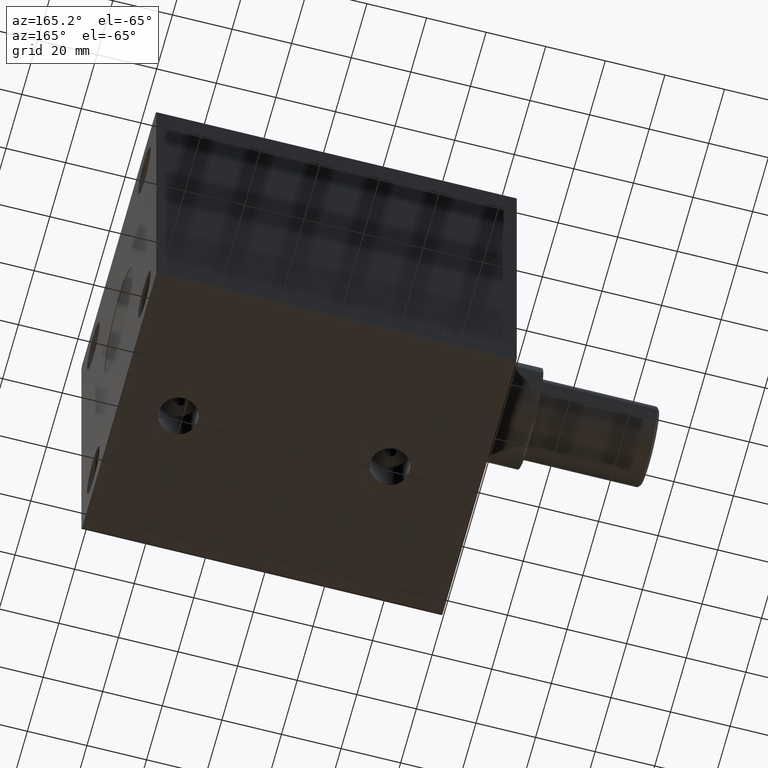
[diagram: clean part render]
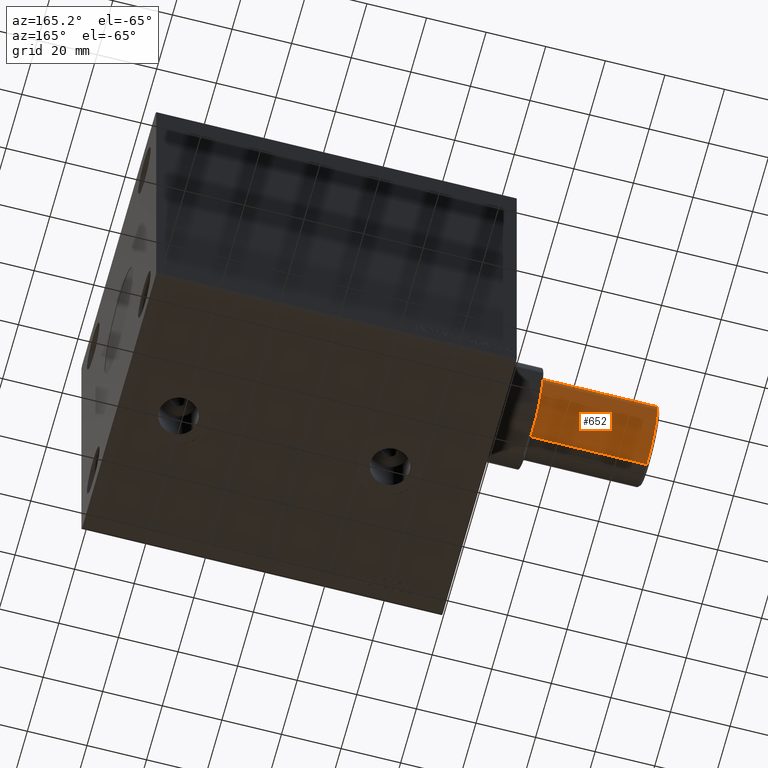
[diagram: same view with one face highlighted and labeled with its STEP entity id]
A machine part, auxiliary view. The second image highlights one B-rep face of the part: STEP entity #652.
In plain terms, the highlighted cylindrical surface (partial cylindrical patch) has radius 13.5 mm, axis along (1, -0, -0).
Its self-contained STEP definition (entity closure, byte-faithful):
#652 = ADVANCED_FACE ( 'NONE', ( #26550 ), #25674, .T. ) ;
#1026 = AXIS2_PLACEMENT_3D ( 'NONE', #32783, #5733, #43262 ) ;
#1727 = DIRECTION ( 'NONE',  ( 0.000000000000000000, 0.000000000000000000, 1.000000000000000000 ) ) ;
#1758 = DIRECTION ( 'NONE',  ( 1.000000000000000000, 0.000000000000000000, 0.000000000000000000 ) ) ;
#5059 = CARTESIAN_POINT ( 'NONE',  ( -13.50000000000000000, 1.653273178848926867E-15, -40.00000000000000000 ) ) ;
#5733 = DIRECTION ( 'NONE',  ( -0.000000000000000000, -0.000000000000000000, 1.000000000000000000 ) ) ;
#9220 = VERTEX_POINT ( 'NONE', #41070 ) ;
#12254 = ORIENTED_EDGE ( 'NONE', *, *, #40232, .T. ) ;
#12330 = ORIENTED_EDGE ( 'NONE', *, *, #44011, .T. ) ;
#13463 = DIRECTION ( 'NONE',  ( 1.000000000000000000, 0.000000000000000000, 0.000000000000000000 ) ) ;
#14098 = EDGE_CURVE ( 'NONE', #9220, #24835, #24177, .T. ) ;
#15662 = ORIENTED_EDGE ( 'NONE', *, *, #41662, .F. ) ;
#16572 = CARTESIAN_POINT ( 'NONE',  ( 13.50000000000000000, 0.000000000000000000, 0.000000000000000000 ) ) ;
#16843 = CARTESIAN_POINT ( 'NONE',  ( 13.50000000000000000, 0.000000000000000000, -40.00000000000000000 ) ) ;
#17504 = DIRECTION ( 'NONE',  ( 0.000000000000000000, 0.000000000000000000, 1.000000000000000000 ) ) ;
#18108 = AXIS2_PLACEMENT_3D ( 'NONE', #40467, #43833, #13463 ) ;
#20298 = CIRCLE ( 'NONE', #1026, 13.50000000000000000 ) ;
#21730 = CARTESIAN_POINT ( 'NONE',  ( -13.50000000000000000, 1.653273178848926867E-15, 0.000000000000000000 ) ) ;
#23195 = CARTESIAN_POINT ( 'NONE',  ( 0.000000000000000000, 0.000000000000000000, -40.00000000000000000 ) ) ;
#24177 = LINE ( 'NONE', #16843, #27874 ) ;
#24733 = VERTEX_POINT ( 'NONE', #21730 ) ;
#24835 = VERTEX_POINT ( 'NONE', #16572 ) ;
#25674 = CYLINDRICAL_SURFACE ( 'NONE', #28532, 13.50000000000000000 ) ;
#25936 = CIRCLE ( 'NONE', #18108, 13.50000000000000000 ) ;
#26073 = LINE ( 'NONE', #5059, #38023 ) ;
#26550 = FACE_OUTER_BOUND ( 'NONE', #26753, .T. ) ;
#26753 = EDGE_LOOP ( 'NONE', ( #12330, #12254, #15662, #32239 ) ) ;
#27874 = VECTOR ( 'NONE', #17504, 1000.000000000000000 ) ;
#28532 = AXIS2_PLACEMENT_3D ( 'NONE', #23195, #32377, #1758 ) ;
#32239 = ORIENTED_EDGE ( 'NONE', *, *, #14098, .F. ) ;
#32377 = DIRECTION ( 'NONE',  ( 0.000000000000000000, 0.000000000000000000, 1.000000000000000000 ) ) ;
#32783 = CARTESIAN_POINT ( 'NONE',  ( 0.000000000000000000, 0.000000000000000000, -39.19999999999998153 ) ) ;
#35509 = CARTESIAN_POINT ( 'NONE',  ( -13.50000000000000000, 1.653273178848926867E-15, -39.19999999999998153 ) ) ;
#38023 = VECTOR ( 'NONE', #1727, 1000.000000000000000 ) ;
#40232 = EDGE_CURVE ( 'NONE', #42719, #24733, #26073, .T. ) ;
#40467 = CARTESIAN_POINT ( 'NONE',  ( 0.000000000000000000, 0.000000000000000000, 0.000000000000000000 ) ) ;
#41070 = CARTESIAN_POINT ( 'NONE',  ( 13.50000000000000000, 0.000000000000000000, -39.19999999999998153 ) ) ;
#41662 = EDGE_CURVE ( 'NONE', #24835, #24733, #25936, .T. ) ;
#42719 = VERTEX_POINT ( 'NONE', #35509 ) ;
#43262 = DIRECTION ( 'NONE',  ( 1.000000000000000000, 0.000000000000000000, 0.000000000000000000 ) ) ;
#43833 = DIRECTION ( 'NONE',  ( 0.000000000000000000, 0.000000000000000000, 1.000000000000000000 ) ) ;
#44011 = EDGE_CURVE ( 'NONE', #9220, #42719, #20298, .T. ) ;